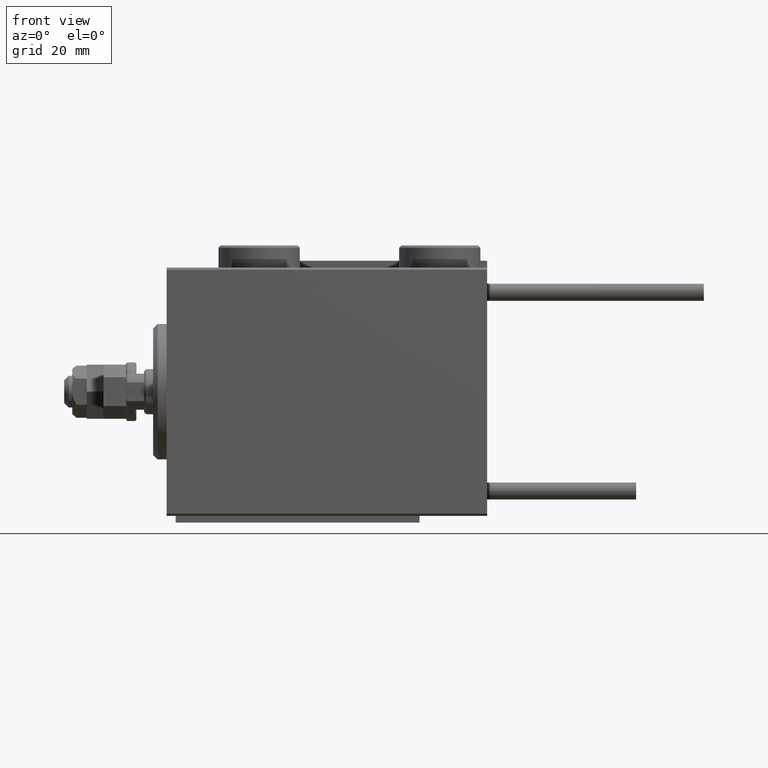
[diagram: clean part render]
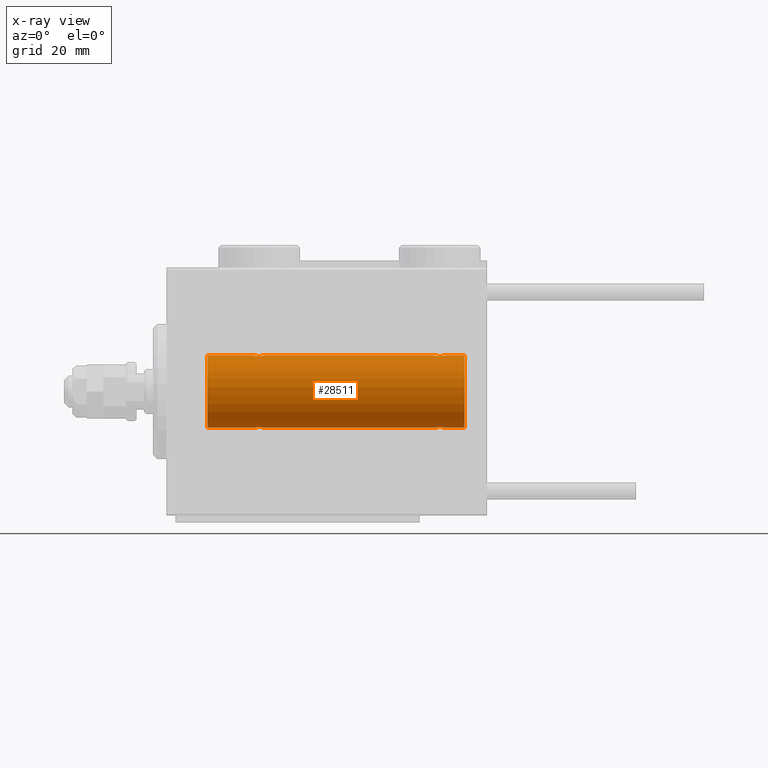
[diagram: x-ray — body ghosted, one internal face saturated and labeled with its STEP entity id]
A machine part, front view, then the same camera in x-ray: the body is ghosted and one INTERNAL B-rep face — a face not visible from any outside direction — is saturated and labeled: STEP entity #28511.
In plain terms, the highlighted cylindrical surface (edge-blend (fillet) strip) has radius 8 mm, axis along (-1, -0, -0).
Its self-contained STEP definition (entity closure, byte-faithful):
#103 = CARTESIAN_POINT ( 'NONE',  ( 66.00000000000000000, 0.000000000000000000, 7.999999999999998224 ) ) ;
#237 = ORIENTED_EDGE ( 'NONE', *, *, #51096, .T. ) ;
#338 = CARTESIAN_POINT ( 'NONE',  ( 59.40834966532099060, -0.6303134207468056305, -7.976551562999471656 ) ) ;
#866 = CARTESIAN_POINT ( 'NONE',  ( 66.00000000000000000, 0.000000000000000000, 7.999999999999998224 ) ) ;
#867 = CARTESIAN_POINT ( 'NONE',  ( 60.66599605016007501, -1.249894643705225405, -7.901756981264364654 ) ) ;
#908 = CIRCLE ( 'NONE', #40787, 7.999999999999998224 ) ;
#984 = VERTEX_POINT ( 'NONE', #44777 ) ;
#1123 = CARTESIAN_POINT ( 'NONE',  ( 61.05544625654725621, -1.122809931695437413, -7.920878051565289901 ) ) ;
#1415 = ORIENTED_EDGE ( 'NONE', *, *, #29152, .T. ) ;
#1755 = CARTESIAN_POINT ( 'NONE',  ( 21.32687899779140750, -0.9409612394163509030, -7.944680966683015377 ) ) ;
#2041 = CARTESIAN_POINT ( 'NONE',  ( 61.74999999999998579, -3.945743559723369601E-16, 7.999999999999998224 ) ) ;
#2063 = VERTEX_POINT ( 'NONE', #43981 ) ;
#2160 = CARTESIAN_POINT ( 'NONE',  ( 61.75000000000000000, -0.1654128203352880078, 7.999999999999998224 ) ) ;
#2699 = CARTESIAN_POINT ( 'NONE',  ( 59.25000000000000000, -4.052181254894032391E-23, 7.999999999999998224 ) ) ;
#2773 = AXIS2_PLACEMENT_3D ( 'NONE', #24264, #13106, #37021 ) ;
#2835 = CARTESIAN_POINT ( 'NONE',  ( 66.00000000000000000, 9.797174393178823685E-16, -7.999999999999998224 ) ) ;
#2950 = CARTESIAN_POINT ( 'NONE',  ( 60.17169333885887283, -1.217212176555601433, 7.907113222863031865 ) ) ;
#3049 = LINE ( 'NONE', #39967, #52203 ) ;
#3215 = CARTESIAN_POINT ( 'NONE',  ( 61.12943792732227877, -1.092287957405118082, 7.925333492638526600 ) ) ;
#3463 = FACE_OUTER_BOUND ( 'NONE', #23845, .T. ) ;
#3883 = CARTESIAN_POINT ( 'NONE',  ( 19.87285837165014613, -1.084361243153319387, 7.926301147147063908 ) ) ;
#4386 = ORIENTED_EDGE ( 'NONE', *, *, #6375, .T. ) ;
#4476 = EDGE_CURVE ( 'NONE', #2063, #37538, #21957, .T. ) ;
#4535 = DIRECTION ( 'NONE',  ( -1.000000000000000000, -0.000000000000000000, -0.000000000000000000 ) ) ;
#4887 = CARTESIAN_POINT ( 'NONE',  ( 66.00000000000000000, 0.000000000000000000, 0.000000000000000000 ) ) ;
#4931 = CARTESIAN_POINT ( 'NONE',  ( 21.59165033467900940, -0.6303134207467964156, 7.976551562999473433 ) ) ;
#5321 = VERTEX_POINT ( 'NONE', #2041 ) ;
#5936 = B_SPLINE_CURVE_WITH_KNOTS ( 'NONE', 3,
 ( #34685, #10505, #50865, #14234, #39204, #1755, #21926, #14504, #10251, #26708, #6516, #22717, #18998, #38937, #30963, #34953, #14760, #50332, #29918, #46095 ),
 .UNSPECIFIED., .F., .F.,
 ( 4, 2, 2, 2, 2, 2, 2, 2, 2, 4 ),
 ( 0.003914068143704951298, 0.004403205918210062117, 0.004892343692715172936, 0.005136912579967725309, 0.005381481467220276815, 0.005870619241725390236, 0.006359757016230503657, 0.006848894790735617077, 0.007338032565240730498, 0.007827170339745843919 ),
 .UNSPECIFIED. ) ;
#6145 = CARTESIAN_POINT ( 'NONE',  ( 61.49841755665749332, -0.7695044314719100553, 7.963745725343520654 ) ) ;
#6375 = EDGE_CURVE ( 'NONE', #984, #49258, #33091, .T. ) ;
#6401 = CARTESIAN_POINT ( 'NONE',  ( 61.74999999999998579, -3.945743559723369601E-16, 7.999999999999998224 ) ) ;
#6516 = CARTESIAN_POINT ( 'NONE',  ( 20.66599605016009988, -1.249894643705219854, -7.901756981264366431 ) ) ;
#6759 = EDGE_CURVE ( 'NONE', #44541, #37538, #44979, .T. ) ;
#6946 = CARTESIAN_POINT ( 'NONE',  ( 59.50041313324087611, -0.7680324342712191443, 7.963892330120039276 ) ) ;
#7812 = CARTESIAN_POINT ( 'NONE',  ( 66.00000000000000000, 0.000000000000000000, 7.999999999999998224 ) ) ;
#7958 = DIRECTION ( 'NONE',  ( -1.000000000000000000, -0.000000000000000000, -0.000000000000000000 ) ) ;
#8468 = EDGE_CURVE ( 'NONE', #10859, #45275, #25238, .T. ) ;
#8651 = DIRECTION ( 'NONE',  ( -1.000000000000000000, -0.000000000000000000, -0.000000000000000000 ) ) ;
#8854 = ORIENTED_EDGE ( 'NONE', *, *, #32003, .F. ) ;
#8915 = CARTESIAN_POINT ( 'NONE',  ( 21.26815485876451461, -0.9994562523959116263, 7.938165420771274405 ) ) ;
#9175 = CARTESIAN_POINT ( 'NONE',  ( 21.75000000000000711, -0.1654128203352893955, 8.000000000000001776 ) ) ;
#10134 = CARTESIAN_POINT ( 'NONE',  ( 60.82701716371746414, -1.217515856520240636, 7.907063872927295733 ) ) ;
#10251 = CARTESIAN_POINT ( 'NONE',  ( 21.05544625654724200, -1.122809931695431640, -7.920878051565290789 ) ) ;
#10505 = CARTESIAN_POINT ( 'NONE',  ( 21.75000000000000355, -0.1632520343443068511, -7.999999999999998224 ) ) ;
#10718 = CARTESIAN_POINT ( 'NONE',  ( 59.25000000000000000, -4.052181254894032391E-23, 7.999999999999998224 ) ) ;
#10777 = ORIENTED_EDGE ( 'NONE', *, *, #32093, .T. ) ;
#10859 = VERTEX_POINT ( 'NONE', #42973 ) ;
#11861 = CARTESIAN_POINT ( 'NONE',  ( 21.71666607977187269, -0.3297258132310499357, 7.994620111903506299 ) ) ;
#11945 = CARTESIAN_POINT ( 'NONE',  ( 66.00000000000000000, 0.000000000000000000, 0.000000000000000000 ) ) ;
#12072 = DIRECTION ( 'NONE',  ( -1.000000000000000000, -0.000000000000000000, -0.000000000000000000 ) ) ;
#12183 = VERTEX_POINT ( 'NONE', #25354 ) ;
#12652 = CARTESIAN_POINT ( 'NONE',  ( 19.25000000000000355, -0.1632520343443079336, 8.000000000000000000 ) ) ;
#12910 = CARTESIAN_POINT ( 'NONE',  ( 19.67312100220859605, -0.9409612394163517912, 7.944680966683013601 ) ) ;
#13106 = DIRECTION ( 'NONE',  ( -1.000000000000000000, 0.000000000000000000, 0.000000000000000000 ) ) ;
#13155 = CARTESIAN_POINT ( 'NONE',  ( 61.74999999999998579, 9.797173987957720246E-16, -7.999999999999998224 ) ) ;
#13326 = CARTESIAN_POINT ( 'NONE',  ( 61.49958686675913100, -0.7680324342712171459, -7.963892330120039276 ) ) ;
#13373 = DIRECTION ( 'NONE',  ( -1.000000000000000000, 0.000000000000000000, 0.000000000000000000 ) ) ;
#14234 = CARTESIAN_POINT ( 'NONE',  ( 21.59250917855271013, -0.6288424646912625926, -7.976670562295708145 ) ) ;
#14386 = ORIENTED_EDGE ( 'NONE', *, *, #6759, .F. ) ;
#14504 = CARTESIAN_POINT ( 'NONE',  ( 21.12714162834985387, -1.084361243153318721, -7.926301147147063908 ) ) ;
#14760 = CARTESIAN_POINT ( 'NONE',  ( 19.40834966532100481, -0.6303134207467991912, -7.976551562999473433 ) ) ;
#15184 = ORIENTED_EDGE ( 'NONE', *, *, #8468, .T. ) ;
#16519 = VERTEX_POINT ( 'NONE', #2835 ) ;
#16893 = CARTESIAN_POINT ( 'NONE',  ( 20.66440551148902571, -1.250104850332075523, 7.901723728054487417 ) ) ;
#17060 = CARTESIAN_POINT ( 'NONE',  ( 59.87056207267769281, -1.092287957405125631, -7.925333492638526600 ) ) ;
#17378 = CARTESIAN_POINT ( 'NONE',  ( 21.75000000000000355, 9.797173987965608855E-16, -7.999999999999998224 ) ) ;
#17624 = VERTEX_POINT ( 'NONE', #13155 ) ;
#18355 = CARTESIAN_POINT ( 'NONE',  ( 59.73732994206309144, -0.9937204387496759717, 7.938174152191988853 ) ) ;
#18998 = CARTESIAN_POINT ( 'NONE',  ( 20.17298283628253230, -1.217515856520239970, -7.907063872927298398 ) ) ;
#19144 = VECTOR ( 'NONE', #20544, 1000.000000000000000 ) ;
#20442 = DIRECTION ( 'NONE',  ( 0.000000000000000000, 0.000000000000000000, 1.000000000000000000 ) ) ;
#20544 = DIRECTION ( 'NONE',  ( -1.000000000000000000, -0.000000000000000000, -0.000000000000000000 ) ) ;
#20992 = EDGE_CURVE ( 'NONE', #16519, #17624, #32265, .T. ) ;
#21022 = EDGE_CURVE ( 'NONE', #16519, #22079, #908, .T. ) ;
#21298 = CARTESIAN_POINT ( 'NONE',  ( 61.74999999999998579, 9.797173987957720246E-16, -7.999999999999998224 ) ) ;
#21926 = CARTESIAN_POINT ( 'NONE',  ( 21.26267005793691212, -0.9937204387496720859, -7.938174152191990629 ) ) ;
#21957 = B_SPLINE_CURVE_WITH_KNOTS ( 'NONE', 3,
 ( #24068, #12652, #44783, #28070, #32319, #12910, #44519, #3883, #29113, #41058, #37079, #16893, #33353, #45298, #8915, #25111, #4931, #11861, #9175, #42367 ),
 .UNSPECIFIED., .F., .F.,
 ( 4, 2, 2, 2, 2, 2, 2, 2, 2, 4 ),
 ( 0.003914068143704974717, 0.004403205918210087270, 0.004892343692715199824, 0.005136912579967756534, 0.005381481467220313245, 0.005870619241725426665, 0.006359757016230540086, 0.006848894790735652639, 0.007338032565240766060, 0.007827170339745878613 ),
 .UNSPECIFIED. ) ;
#22079 = VERTEX_POINT ( 'NONE', #7812 ) ;
#22346 = CARTESIAN_POINT ( 'NONE',  ( 61.59165033467900230, -0.6303134207467948613, 7.976551562999476985 ) ) ;
#22571 = VECTOR ( 'NONE', #45462, 1000.000000000000000 ) ;
#22717 = CARTESIAN_POINT ( 'NONE',  ( 20.33559448851098850, -1.250104850332076634, -7.901723728054487417 ) ) ;
#23404 = AXIS2_PLACEMENT_3D ( 'NONE', #11945, #7958, #20442 ) ;
#23796 = VECTOR ( 'NONE', #12072, 1000.000000000000000 ) ;
#23845 = EDGE_LOOP ( 'NONE', ( #36718, #40440, #40527, #15184, #1415, #4386, #237, #29503, #24185, #14386, #10777, #8854 ) ) ;
#24068 = CARTESIAN_POINT ( 'NONE',  ( 19.25000000000000000, -4.052102368803510290E-23, 7.999999999999998224 ) ) ;
#24185 = ORIENTED_EDGE ( 'NONE', *, *, #4476, .T. ) ;
#24264 = CARTESIAN_POINT ( 'NONE',  ( 9.000000000000001776, 0.000000000000000000, 0.000000000000000000 ) ) ;
#25020 = CARTESIAN_POINT ( 'NONE',  ( 61.26267005793689435, -0.9937204387496750835, -7.938174152191992405 ) ) ;
#25111 = CARTESIAN_POINT ( 'NONE',  ( 21.49841755665748622, -0.7695044314719063916, 7.963745725343518878 ) ) ;
#25238 = LINE ( 'NONE', #41444, #51441 ) ;
#25354 = CARTESIAN_POINT ( 'NONE',  ( 9.000000000000001776, 0.000000000000000000, 7.999999999999998224 ) ) ;
#26708 = CARTESIAN_POINT ( 'NONE',  ( 20.82830666114114848, -1.217212176555599434, -7.907113222863026536 ) ) ;
#26829 = B_SPLINE_CURVE_WITH_KNOTS ( 'NONE', 3,
 ( #21298, #33268, #49180, #28758, #13326, #48913, #25020, #29026, #1123, #41230, #867, #29546, #36733, #17060, #41747, #33003, #338, #49694, #37760, #36989 ),
 .UNSPECIFIED., .F., .F.,
 ( 4, 2, 2, 2, 2, 2, 2, 2, 2, 4 ),
 ( 0.003914068143704938288, 0.004403205918210059515, 0.004892343692715181609, 0.005136912579967734850, 0.005381481467220288958, 0.005870619241725396308, 0.006359757016230504524, 0.006848894790735611873, 0.007338032565240720090, 0.007827170339745828306 ),
 .UNSPECIFIED. ) ;
#27388 = CARTESIAN_POINT ( 'NONE',  ( 59.67312100220857474, -0.9409612394163524574, 7.944680966683013601 ) ) ;
#27848 = EDGE_CURVE ( 'NONE', #2063, #12183, #3049, .T. ) ;
#28070 = CARTESIAN_POINT ( 'NONE',  ( 19.40749082144729343, -0.6288424646912651461, 7.976670562295706368 ) ) ;
#28511 = ADVANCED_FACE ( 'NONE', ( #3463 ), #31878, .F. ) ;
#28758 = CARTESIAN_POINT ( 'NONE',  ( 61.59250917855268881, -0.6288424646912659233, -7.976670562295706368 ) ) ;
#29026 = CARTESIAN_POINT ( 'NONE',  ( 61.12714162834987519, -1.084361243153324050, -7.926301147147067461 ) ) ;
#29102 = CARTESIAN_POINT ( 'NONE',  ( 66.00000000000000000, 9.797174393178823685E-16, -7.999999999999998224 ) ) ;
#29113 = CARTESIAN_POINT ( 'NONE',  ( 19.94455374345276155, -1.122809931695431640, 7.920878051565288125 ) ) ;
#29152 = EDGE_CURVE ( 'NONE', #45275, #984, #5936, .T. ) ;
#29503 = ORIENTED_EDGE ( 'NONE', *, *, #27848, .F. ) ;
#29546 = CARTESIAN_POINT ( 'NONE',  ( 60.33559448851097073, -1.250104850332083961, -7.901723728054489193 ) ) ;
#29918 = CARTESIAN_POINT ( 'NONE',  ( 19.25000000000000711, -0.1654128203352910609, -7.999999999999998224 ) ) ;
#30497 = EDGE_CURVE ( 'NONE', #17624, #10859, #26829, .T. ) ;
#30593 = CARTESIAN_POINT ( 'NONE',  ( 61.26815485876448975, -0.9994562523959150679, 7.938165420771270853 ) ) ;
#30963 = CARTESIAN_POINT ( 'NONE',  ( 19.73184514123549249, -0.9994562523959139577, -7.938165420771276182 ) ) ;
#31382 = CARTESIAN_POINT ( 'NONE',  ( 60.66440551148902216, -1.250104850332078410, 7.901723728054489193 ) ) ;
#31878 = CYLINDRICAL_SURFACE ( 'NONE', #23404, 7.999999999999998224 ) ;
#32003 = EDGE_CURVE ( 'NONE', #22079, #5321, #37758, .T. ) ;
#32093 = EDGE_CURVE ( 'NONE', #44541, #5321, #41918, .T. ) ;
#32265 = LINE ( 'NONE', #48435, #23796 ) ;
#32319 = CARTESIAN_POINT ( 'NONE',  ( 19.50041313324087611, -0.7680324342712182561, 7.963892330120039276 ) ) ;
#32645 = CARTESIAN_POINT ( 'NONE',  ( 9.000000000000001776, 9.797174393178823685E-16, -7.999999999999998224 ) ) ;
#32683 = VECTOR ( 'NONE', #8651, 1000.000000000000000 ) ;
#33003 = CARTESIAN_POINT ( 'NONE',  ( 59.50158244334252089, -0.7695044314719172718, -7.963745725343518878 ) ) ;
#33091 = LINE ( 'NONE', #29102, #32683 ) ;
#33268 = CARTESIAN_POINT ( 'NONE',  ( 61.74999999999998579, -0.1632520343443072675, -8.000000000000000000 ) ) ;
#33353 = CARTESIAN_POINT ( 'NONE',  ( 20.82701716371747480, -1.217515856520238637, 7.907063872927298398 ) ) ;
#34685 = CARTESIAN_POINT ( 'NONE',  ( 21.75000000000000355, 9.797173987965608855E-16, -7.999999999999998224 ) ) ;
#34953 = CARTESIAN_POINT ( 'NONE',  ( 19.50158244334252089, -0.7695044314719098333, -7.963745725343515325 ) ) ;
#35358 = CARTESIAN_POINT ( 'NONE',  ( 59.28284287980511635, -0.3279446529214881112, 7.994696267489722175 ) ) ;
#36718 = ORIENTED_EDGE ( 'NONE', *, *, #21022, .F. ) ;
#36733 = CARTESIAN_POINT ( 'NONE',  ( 60.17298283628254296, -1.217515856520247075, -7.907063872927296622 ) ) ;
#36989 = CARTESIAN_POINT ( 'NONE',  ( 59.25000000000000000, -1.041992727941584711E-14, -7.999999999999998224 ) ) ;
#37021 = DIRECTION ( 'NONE',  ( 0.000000000000000000, 0.000000000000000000, 1.000000000000000000 ) ) ;
#37079 = CARTESIAN_POINT ( 'NONE',  ( 20.33400394983990722, -1.249894643705219410, 7.901756981264364654 ) ) ;
#37538 = VERTEX_POINT ( 'NONE', #47594 ) ;
#37758 = LINE ( 'NONE', #866, #22571 ) ;
#37760 = CARTESIAN_POINT ( 'NONE',  ( 59.24999999999999289, -0.1654128203352973059, -7.999999999999994671 ) ) ;
#38560 = CARTESIAN_POINT ( 'NONE',  ( 61.71666607977187624, -0.3297258132310481593, 7.994620111903506299 ) ) ;
#38925 = DIRECTION ( 'NONE',  ( -1.000000000000000000, -0.000000000000000000, -0.000000000000000000 ) ) ;
#38937 = CARTESIAN_POINT ( 'NONE',  ( 19.87056207267771413, -1.092287957405118970, -7.925333492638526600 ) ) ;
#39204 = CARTESIAN_POINT ( 'NONE',  ( 21.49958686675913810, -0.7680324342712174790, -7.963892330120039276 ) ) ;
#39348 = CARTESIAN_POINT ( 'NONE',  ( 59.87285837165013191, -1.084361243153322718, 7.926301147147065684 ) ) ;
#39598 = CARTESIAN_POINT ( 'NONE',  ( 59.94455374345275800, -1.122809931695432306, 7.920878051565290789 ) ) ;
#39967 = CARTESIAN_POINT ( 'NONE',  ( 66.00000000000000000, 0.000000000000000000, 7.999999999999998224 ) ) ;
#40440 = ORIENTED_EDGE ( 'NONE', *, *, #20992, .T. ) ;
#40527 = ORIENTED_EDGE ( 'NONE', *, *, #30497, .T. ) ;
#40787 = AXIS2_PLACEMENT_3D ( 'NONE', #4887, #13373, #41273 ) ;
#41058 = CARTESIAN_POINT ( 'NONE',  ( 20.17169333885885862, -1.217212176555599878, 7.907113222863031865 ) ) ;
#41230 = CARTESIAN_POINT ( 'NONE',  ( 60.82830666114112717, -1.217212176555605208, -7.907113222863025648 ) ) ;
#41273 = DIRECTION ( 'NONE',  ( 0.000000000000000000, 0.000000000000000000, 1.000000000000000000 ) ) ;
#41444 = CARTESIAN_POINT ( 'NONE',  ( 66.00000000000000000, 9.797174393178823685E-16, -7.999999999999998224 ) ) ;
#41747 = CARTESIAN_POINT ( 'NONE',  ( 59.73184514123546762, -0.9994562523959213962, -7.938165420771272629 ) ) ;
#41918 = B_SPLINE_CURVE_WITH_KNOTS ( 'NONE', 3,
 ( #2699, #51286, #35358, #43330, #6946, #27388, #18355, #39348, #39598, #2950, #50749, #31382, #10134, #3215, #30593, #6145, #22346, #38560, #2160, #6401 ),
 .UNSPECIFIED., .F., .F.,
 ( 4, 2, 2, 2, 2, 2, 2, 2, 2, 4 ),
 ( 0.003914068143704941757, 0.004403205918210043035, 0.004892343692715144313, 0.005136912579967702758, 0.005381481467220260335, 0.005870619241725376358, 0.006359757016230491514, 0.006848894790735606669, 0.007338032565240721825, 0.007827170339745836980 ),
 .UNSPECIFIED. ) ;
#42367 = CARTESIAN_POINT ( 'NONE',  ( 21.75000000000000355, 2.367508772235555199E-16, 7.999999999999998224 ) ) ;
#42973 = CARTESIAN_POINT ( 'NONE',  ( 59.25000000000000000, -1.041992727941584711E-14, -7.999999999999998224 ) ) ;
#43330 = CARTESIAN_POINT ( 'NONE',  ( 59.40749082144729698, -0.6288424646912654792, 7.976670562295706368 ) ) ;
#43981 = CARTESIAN_POINT ( 'NONE',  ( 19.25000000000000000, -4.052102368803510290E-23, 7.999999999999998224 ) ) ;
#44519 = CARTESIAN_POINT ( 'NONE',  ( 19.73732994206309499, -0.9937204387496718638, 7.938174152191987076 ) ) ;
#44541 = VERTEX_POINT ( 'NONE', #10718 ) ;
#44777 = CARTESIAN_POINT ( 'NONE',  ( 19.25000000000000711, -3.107364149877583097E-15, -7.999999999999998224 ) ) ;
#44783 = CARTESIAN_POINT ( 'NONE',  ( 19.28284287980512346, -0.3279446529214880002, 7.994696267489722175 ) ) ;
#44979 = LINE ( 'NONE', #103, #19144 ) ;
#45275 = VERTEX_POINT ( 'NONE', #17378 ) ;
#45298 = CARTESIAN_POINT ( 'NONE',  ( 21.12943792732229298, -1.092287957405117194, 7.925333492638530153 ) ) ;
#45462 = DIRECTION ( 'NONE',  ( -1.000000000000000000, -0.000000000000000000, -0.000000000000000000 ) ) ;
#46095 = CARTESIAN_POINT ( 'NONE',  ( 19.25000000000000711, -3.107364149877583097E-15, -7.999999999999998224 ) ) ;
#47594 = CARTESIAN_POINT ( 'NONE',  ( 21.75000000000000355, 2.367508772235555199E-16, 7.999999999999998224 ) ) ;
#48435 = CARTESIAN_POINT ( 'NONE',  ( 66.00000000000000000, 9.797174393178823685E-16, -7.999999999999998224 ) ) ;
#48549 = CIRCLE ( 'NONE', #2773, 7.999999999999998224 ) ;
#48913 = CARTESIAN_POINT ( 'NONE',  ( 61.32687899779142526, -0.9409612394163516802, -7.944680966683013601 ) ) ;
#49180 = CARTESIAN_POINT ( 'NONE',  ( 61.71715712019486944, -0.3279446529214886663, -7.994696267489722175 ) ) ;
#49258 = VERTEX_POINT ( 'NONE', #32645 ) ;
#49694 = CARTESIAN_POINT ( 'NONE',  ( 59.28333392022811665, -0.3297258132310598722, -7.994620111903497417 ) ) ;
#50332 = CARTESIAN_POINT ( 'NONE',  ( 19.28333392022813797, -0.3297258132310537104, -7.994620111903500970 ) ) ;
#50749 = CARTESIAN_POINT ( 'NONE',  ( 60.33400394983990367, -1.249894643705222741, 7.901756981264364654 ) ) ;
#50865 = CARTESIAN_POINT ( 'NONE',  ( 21.71715712019488009, -0.3279446529214856687, -7.994696267489723951 ) ) ;
#51096 = EDGE_CURVE ( 'NONE', #49258, #12183, #48549, .T. ) ;
#51286 = CARTESIAN_POINT ( 'NONE',  ( 59.25000000000001421, -0.1632520343443085997, 8.000000000000000000 ) ) ;
#51441 = VECTOR ( 'NONE', #4535, 1000.000000000000000 ) ;
#52203 = VECTOR ( 'NONE', #38925, 1000.000000000000000 ) ;